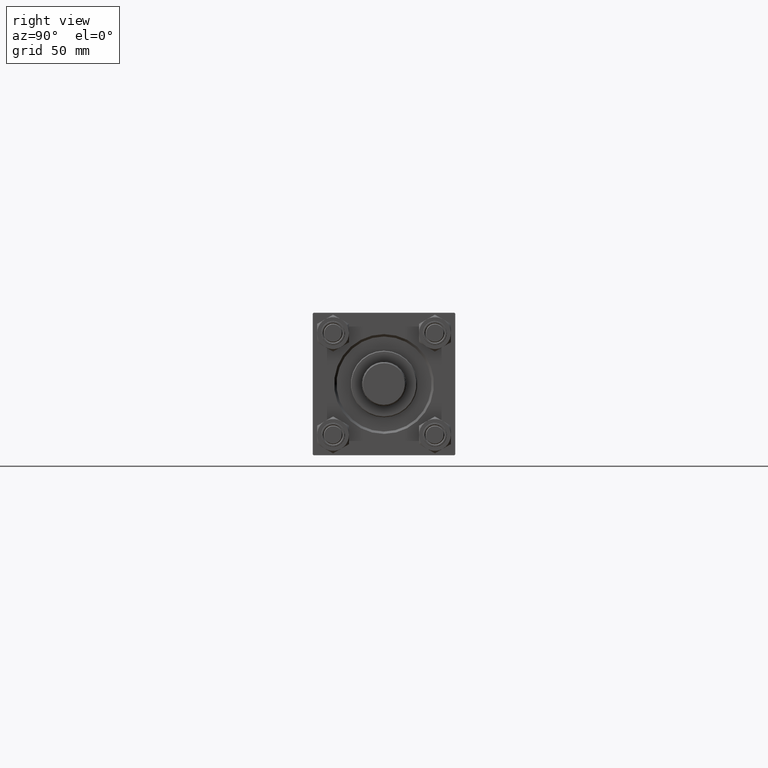
[diagram: clean part render]
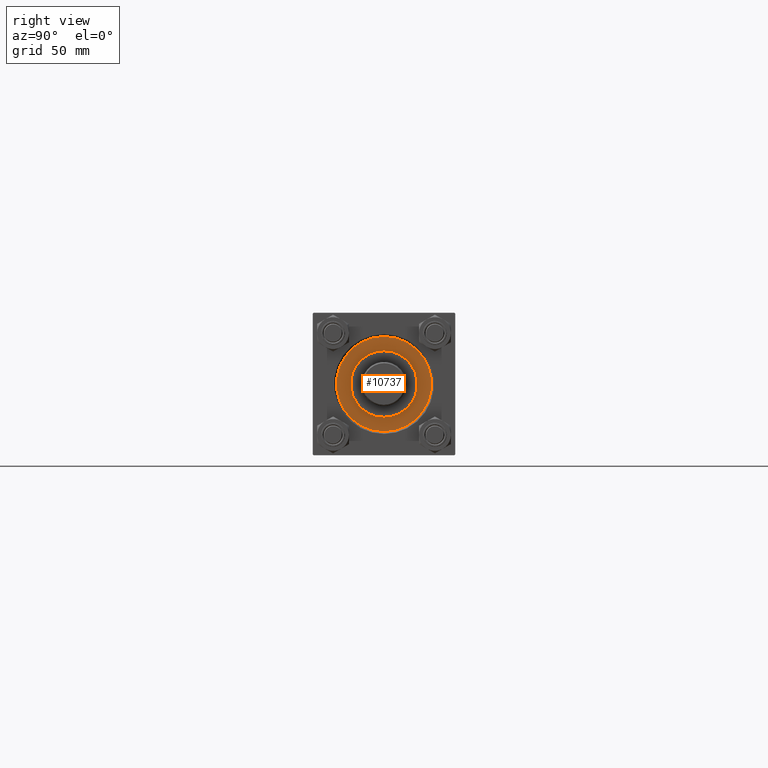
[diagram: same view with one face highlighted and labeled with its STEP entity id]
A machine part, right view. The second image highlights one B-rep face of the part: STEP entity #10737.
In plain terms, the highlighted planar face has unit normal (1, 0, -0).
Its self-contained STEP definition (entity closure, byte-faithful):
#1945 = ORIENTED_EDGE ( 'NONE', *, *, #48870, .F. ) ;
#3533 = FACE_BOUND ( 'NONE', #45276, .T. ) ;
#4963 = VERTEX_POINT ( 'NONE', #15023 ) ;
#6054 = CARTESIAN_POINT ( 'NONE',  ( 30.00000000000000000, 3.673940397442059178E-15, 28.69999999999999929 ) ) ;
#6792 = CARTESIAN_POINT ( 'NONE',  ( 0.000000000000000000, 0.000000000000000000, 28.69999999999999929 ) ) ;
#7591 = DIRECTION ( 'NONE',  ( 0.000000000000000000, 0.000000000000000000, 1.000000000000000000 ) ) ;
#7777 = DIRECTION ( 'NONE',  ( 0.000000000000000000, 0.000000000000000000, 1.000000000000000000 ) ) ;
#10737 = ADVANCED_FACE ( 'NONE', ( #3533, #14972 ), #46742, .T. ) ;
#12864 = EDGE_CURVE ( 'NONE', #25235, #29290, #17866, .T. ) ;
#14972 = FACE_OUTER_BOUND ( 'NONE', #18957, .T. ) ;
#15023 = CARTESIAN_POINT ( 'NONE',  ( -30.00000000000000000, 0.000000000000000000, 28.69999999999999929 ) ) ;
#16011 = AXIS2_PLACEMENT_3D ( 'NONE', #49561, #7777, #33795 ) ;
#16258 = EDGE_CURVE ( 'NONE', #48157, #4963, #39000, .T. ) ;
#16582 = CIRCLE ( 'NONE', #47431, 30.00000000000000000 ) ;
#17866 = CIRCLE ( 'NONE', #22775, 21.00000000000000000 ) ;
#18748 = DIRECTION ( 'NONE',  ( 0.000000000000000000, 0.000000000000000000, 1.000000000000000000 ) ) ;
#18957 = EDGE_LOOP ( 'NONE', ( #49931, #38090 ) ) ;
#19912 = CARTESIAN_POINT ( 'NONE',  ( 0.000000000000000000, 0.000000000000000000, 28.69999999999999929 ) ) ;
#20041 = DIRECTION ( 'NONE',  ( 1.000000000000000000, 0.000000000000000000, -0.000000000000000000 ) ) ;
#21636 = CARTESIAN_POINT ( 'NONE',  ( 0.000000000000000000, 0.000000000000000000, 28.69999999999999929 ) ) ;
#22262 = ORIENTED_EDGE ( 'NONE', *, *, #12864, .F. ) ;
#22775 = AXIS2_PLACEMENT_3D ( 'NONE', #6792, #18748, #50253 ) ;
#25235 = VERTEX_POINT ( 'NONE', #38538 ) ;
#29290 = VERTEX_POINT ( 'NONE', #29908 ) ;
#29908 = CARTESIAN_POINT ( 'NONE',  ( -21.00000000000000000, 0.000000000000000000, 28.69999999999999929 ) ) ;
#32851 = DIRECTION ( 'NONE',  ( 0.000000000000000000, 0.000000000000000000, 1.000000000000000000 ) ) ;
#33795 = DIRECTION ( 'NONE',  ( 1.000000000000000000, 0.000000000000000000, 0.000000000000000000 ) ) ;
#34136 = AXIS2_PLACEMENT_3D ( 'NONE', #19912, #35422, #48122 ) ;
#35422 = DIRECTION ( 'NONE',  ( 0.000000000000000000, 0.000000000000000000, 1.000000000000000000 ) ) ;
#35945 = EDGE_CURVE ( 'NONE', #4963, #48157, #16582, .T. ) ;
#38090 = ORIENTED_EDGE ( 'NONE', *, *, #16258, .T. ) ;
#38538 = CARTESIAN_POINT ( 'NONE',  ( 21.00000000000000000, 2.571758278209441661E-15, 28.69999999999999929 ) ) ;
#39000 = CIRCLE ( 'NONE', #34136, 30.00000000000000000 ) ;
#40378 = CIRCLE ( 'NONE', #16011, 21.00000000000000000 ) ;
#41216 = DIRECTION ( 'NONE',  ( 1.000000000000000000, 0.000000000000000000, 0.000000000000000000 ) ) ;
#45276 = EDGE_LOOP ( 'NONE', ( #1945, #22262 ) ) ;
#46243 = CARTESIAN_POINT ( 'NONE',  ( 0.000000000000000000, 0.000000000000000000, 28.69999999999999929 ) ) ;
#46742 = PLANE ( 'NONE',  #47858 ) ;
#47431 = AXIS2_PLACEMENT_3D ( 'NONE', #21636, #32851, #41216 ) ;
#47858 = AXIS2_PLACEMENT_3D ( 'NONE', #46243, #7591, #20041 ) ;
#48122 = DIRECTION ( 'NONE',  ( 1.000000000000000000, 0.000000000000000000, 0.000000000000000000 ) ) ;
#48157 = VERTEX_POINT ( 'NONE', #6054 ) ;
#48870 = EDGE_CURVE ( 'NONE', #29290, #25235, #40378, .T. ) ;
#49561 = CARTESIAN_POINT ( 'NONE',  ( 0.000000000000000000, 0.000000000000000000, 28.69999999999999929 ) ) ;
#49931 = ORIENTED_EDGE ( 'NONE', *, *, #35945, .T. ) ;
#50253 = DIRECTION ( 'NONE',  ( 1.000000000000000000, 0.000000000000000000, 0.000000000000000000 ) ) ;